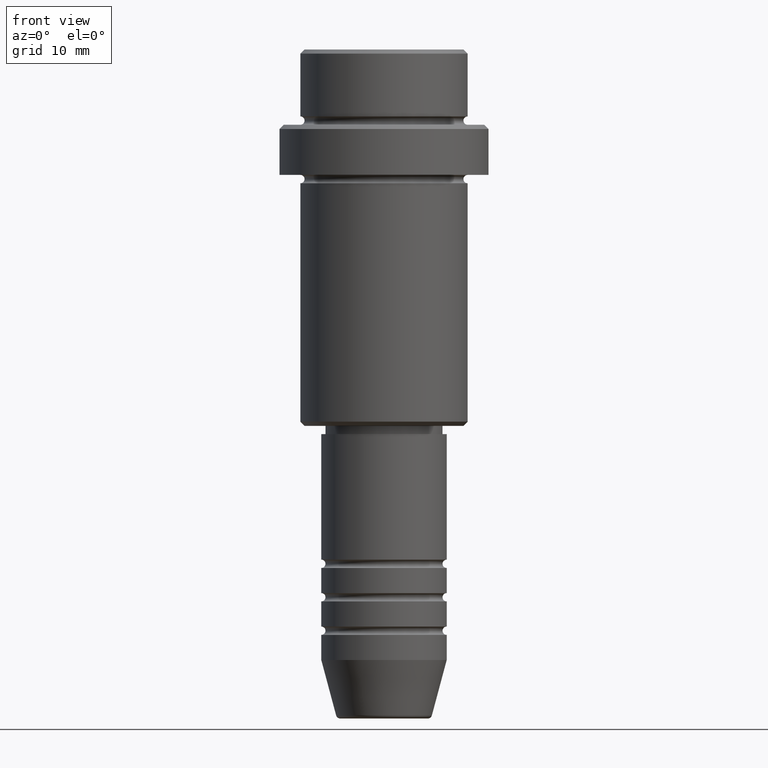
[diagram: clean part render]
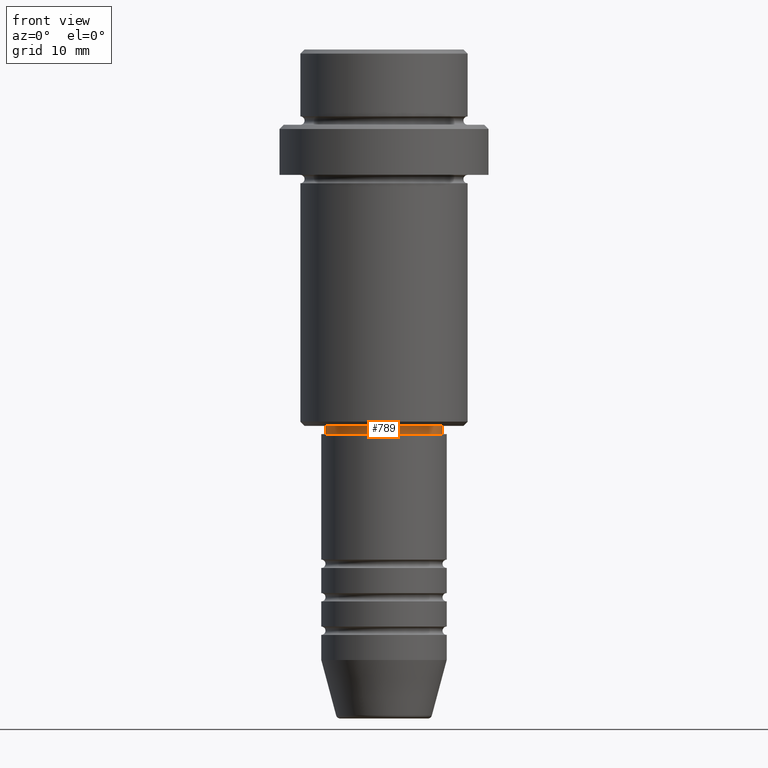
[diagram: same view with one face highlighted and labeled with its STEP entity id]
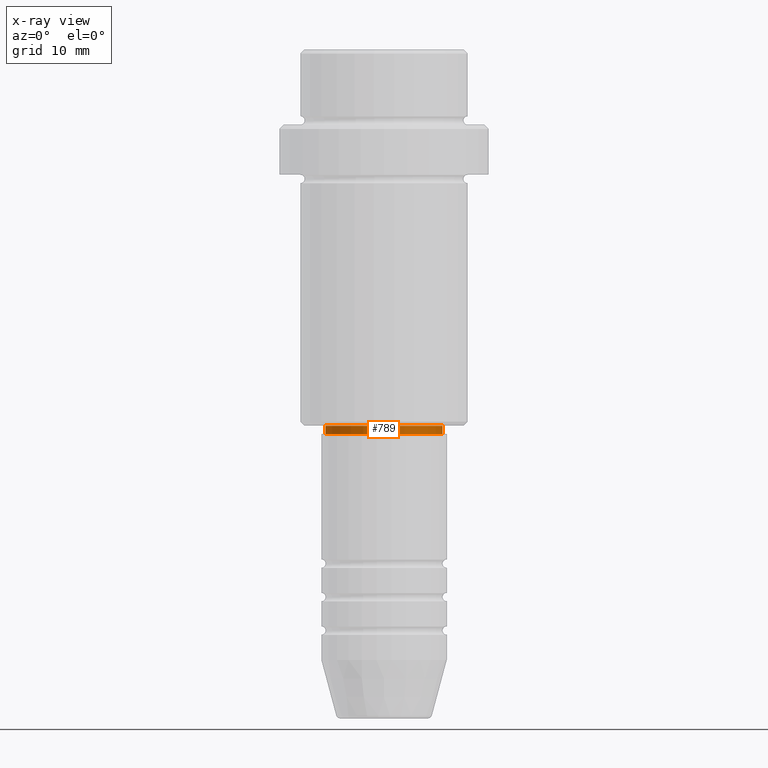
[diagram: x-ray of the same camera — body ghosted, the highlighted face saturated]
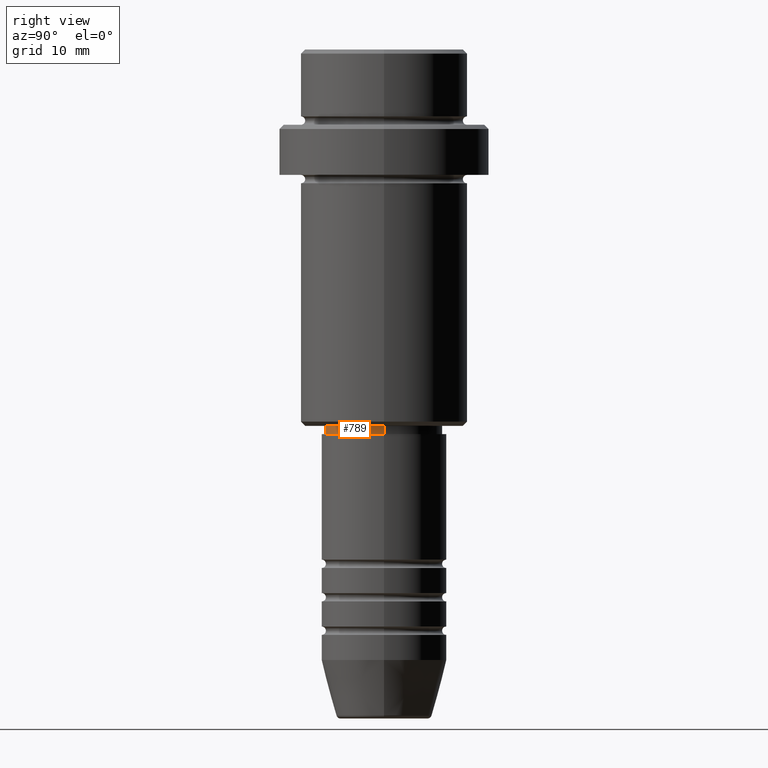
[diagram: same view with one face highlighted and labeled with its STEP entity id]
A machine part, front view. The second image highlights one B-rep face of the part: STEP entity #789.
The next image is the same camera in x-ray: the body ghosted, the highlighted face saturated — about 0% of this face is hidden behind the body in this view.
A second angle (right view) of the same face is appended — the face is thin or edge-on in the first view.
In plain terms, the highlighted cylindrical surface (partial cylindrical patch) has radius 7 mm, axis along (-0, -0, 1).
Its self-contained STEP definition (entity closure, byte-faithful):
#27 = ORIENTED_EDGE ( 'NONE', *, *, #1254, .F. ) ;
#33 = EDGE_LOOP ( 'NONE', ( #27, #546, #463, #454 ) ) ;
#113 = VERTEX_POINT ( 'NONE', #1372 ) ;
#204 = CARTESIAN_POINT ( 'NONE',  ( 6.999999999999993783, 0.000000000000000000, -46.00000000000000000 ) ) ;
#246 = VERTEX_POINT ( 'NONE', #794 ) ;
#247 = CIRCLE ( 'NONE', #1052, 6.999999999999993783 ) ;
#341 = EDGE_CURVE ( 'NONE', #113, #736, #247, .T. ) ;
#397 = CARTESIAN_POINT ( 'NONE',  ( 6.999999999999993783, 0.000000000000000000, 0.000000000000000000 ) ) ;
#403 = EDGE_CURVE ( 'NONE', #1314, #246, #800, .T. ) ;
#454 = ORIENTED_EDGE ( 'NONE', *, *, #403, .F. ) ;
#463 = ORIENTED_EDGE ( 'NONE', *, *, #815, .T. ) ;
#474 = LINE ( 'NONE', #1345, #838 ) ;
#500 = DIRECTION ( 'NONE',  ( -0.000000000000000000, -0.000000000000000000, 1.000000000000000000 ) ) ;
#522 = VECTOR ( 'NONE', #724, 1000.000000000000000 ) ;
#546 = ORIENTED_EDGE ( 'NONE', *, *, #341, .T. ) ;
#724 = DIRECTION ( 'NONE',  ( -0.000000000000000000, -0.000000000000000000, 1.000000000000000000 ) ) ;
#733 = AXIS2_PLACEMENT_3D ( 'NONE', #943, #929, #1145 ) ;
#736 = VERTEX_POINT ( 'NONE', #204 ) ;
#741 = DIRECTION ( 'NONE',  ( 1.000000000000000000, 0.000000000000000000, 0.000000000000000000 ) ) ;
#789 = ADVANCED_FACE ( 'NONE', ( #819 ), #923, .T. ) ;
#794 = CARTESIAN_POINT ( 'NONE',  ( 6.999999999999993783, 0.000000000000000000, -45.00000000000000000 ) ) ;
#800 = CIRCLE ( 'NONE', #986, 6.999999999999993783 ) ;
#815 = EDGE_CURVE ( 'NONE', #736, #246, #1376, .T. ) ;
#817 = DIRECTION ( 'NONE',  ( -0.000000000000000000, -0.000000000000000000, 1.000000000000000000 ) ) ;
#819 = FACE_OUTER_BOUND ( 'NONE', #33, .T. ) ;
#838 = VECTOR ( 'NONE', #1131, 1000.000000000000000 ) ;
#846 = CARTESIAN_POINT ( 'NONE',  ( -6.999999999999993783, 8.572527594031465301E-16, -45.00000000000000000 ) ) ;
#923 = CYLINDRICAL_SURFACE ( 'NONE', #733, 6.999999999999993783 ) ;
#929 = DIRECTION ( 'NONE',  ( -0.000000000000000000, -0.000000000000000000, 1.000000000000000000 ) ) ;
#943 = CARTESIAN_POINT ( 'NONE',  ( 0.000000000000000000, 0.000000000000000000, 0.000000000000000000 ) ) ;
#986 = AXIS2_PLACEMENT_3D ( 'NONE', #1383, #500, #741 ) ;
#1020 = CARTESIAN_POINT ( 'NONE',  ( 0.000000000000000000, 0.000000000000000000, -46.00000000000000000 ) ) ;
#1052 = AXIS2_PLACEMENT_3D ( 'NONE', #1020, #817, #1143 ) ;
#1131 = DIRECTION ( 'NONE',  ( -0.000000000000000000, -0.000000000000000000, 1.000000000000000000 ) ) ;
#1143 = DIRECTION ( 'NONE',  ( 1.000000000000000000, 0.000000000000000000, 0.000000000000000000 ) ) ;
#1145 = DIRECTION ( 'NONE',  ( 1.000000000000000000, 0.000000000000000000, 0.000000000000000000 ) ) ;
#1254 = EDGE_CURVE ( 'NONE', #113, #1314, #474, .T. ) ;
#1314 = VERTEX_POINT ( 'NONE', #846 ) ;
#1345 = CARTESIAN_POINT ( 'NONE',  ( -6.999999999999993783, 8.572527594031465301E-16, 0.000000000000000000 ) ) ;
#1372 = CARTESIAN_POINT ( 'NONE',  ( -6.999999999999993783, 8.572527594031465301E-16, -46.00000000000000000 ) ) ;
#1376 = LINE ( 'NONE', #397, #522 ) ;
#1383 = CARTESIAN_POINT ( 'NONE',  ( 0.000000000000000000, 0.000000000000000000, -45.00000000000000000 ) ) ;